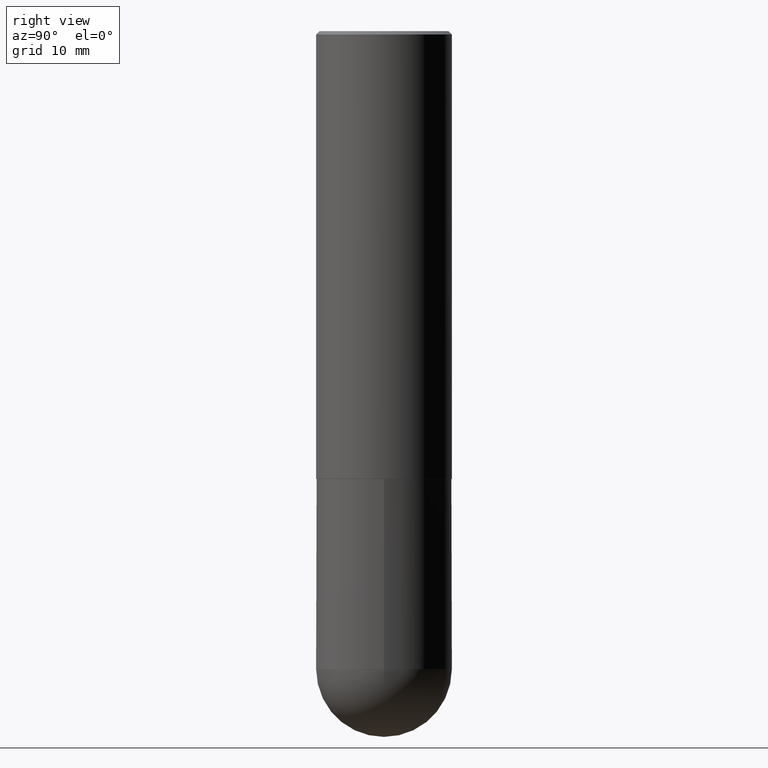
[diagram: clean part render]
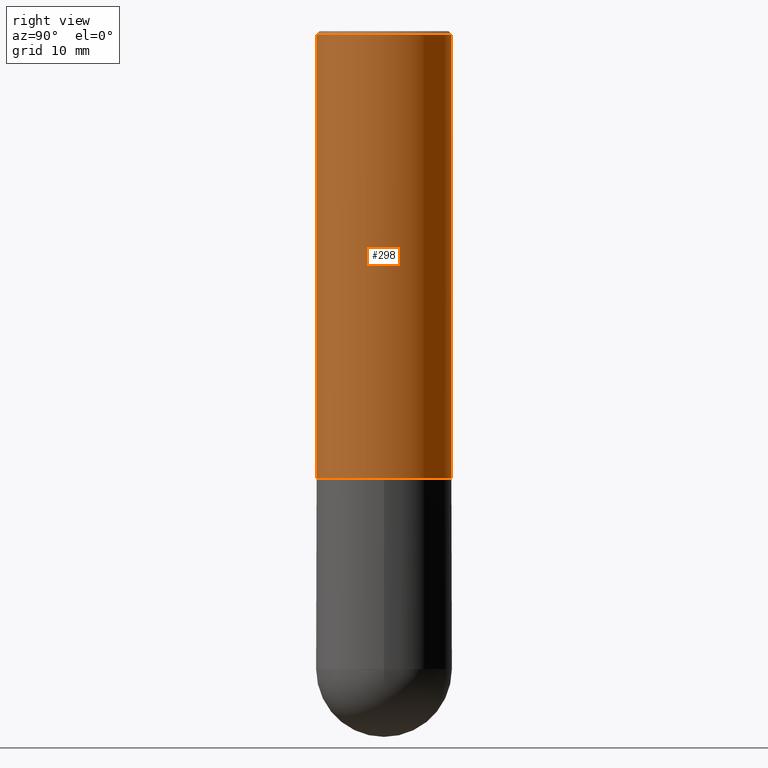
[diagram: same view with one face highlighted and labeled with its STEP entity id]
A machine part, right view. The second image highlights one B-rep face of the part: STEP entity #298.
In plain terms, the highlighted cylindrical surface (partial cylindrical patch) has radius 10 mm, axis along (-0, 0, 1).
Its self-contained STEP definition (entity closure, byte-faithful):
#8 = CIRCLE ( 'NONE', #309, 0.3937000000000002720 ) ;
#14 = ORIENTED_EDGE ( 'NONE', *, *, #219, .F. ) ;
#18 = CARTESIAN_POINT ( 'NONE',  ( 6.349752936603663586E-29, -9.071792033989200442E-15, -2.597400000000000375 ) ) ;
#32 = CARTESIAN_POINT ( 'NONE',  ( -2.749192406205021291E-15, -0.3937000000000093758, -2.597399999999999043 ) ) ;
#39 = VERTEX_POINT ( 'NONE', #333 ) ;
#47 = ORIENTED_EDGE ( 'NONE', *, *, #88, .T. ) ;
#50 = DIRECTION ( 'NONE',  ( -2.444657325249735282E-29, 3.492643425729266472E-15, 1.000000000000000000 ) ) ;
#56 = CIRCLE ( 'NONE', #201, 0.3937000000000000499 ) ;
#61 = DIRECTION ( 'NONE',  ( -2.444657325249735563E-29, 3.492643425729266472E-15, 1.000000000000000000 ) ) ;
#67 = EDGE_CURVE ( 'NONE', #357, #356, #272, .T. ) ;
#88 = EDGE_CURVE ( 'NONE', #323, #357, #8, .T. ) ;
#96 = VECTOR ( 'NONE', #110, 39.37007874015748143 ) ;
#108 = CARTESIAN_POINT ( 'NONE',  ( -2.749192406205084005E-15, -0.3937000000000001609, 1.375053716709612699E-15 ) ) ;
#110 = DIRECTION ( 'NONE',  ( -2.444657325249735282E-29, 3.492643425729266472E-15, 1.000000000000000000 ) ) ;
#113 = CARTESIAN_POINT ( 'NONE',  ( 2.797406750687515181E-15, 0.3937000000000001609, -1.375053716709612699E-15 ) ) ;
#191 = DIRECTION ( 'NONE',  ( -6.982962677686265133E-15, -1.000000000000000000, 3.491137977679279424E-15 ) ) ;
#197 = ORIENTED_EDGE ( 'NONE', *, *, #268, .F. ) ;
#198 = EDGE_LOOP ( 'NONE', ( #47, #230, #197, #14 ) ) ;
#201 = AXIS2_PLACEMENT_3D ( 'NONE', #344, #370, #191 ) ;
#212 = AXIS2_PLACEMENT_3D ( 'NONE', #248, #61, #317 ) ;
#219 = EDGE_CURVE ( 'NONE', #323, #39, #396, .T. ) ;
#230 = ORIENTED_EDGE ( 'NONE', *, *, #67, .T. ) ;
#237 = DIRECTION ( 'NONE',  ( -6.982962677686265922E-15, -1.000000000000000000, 4.163344669033672479E-15 ) ) ;
#243 = VECTOR ( 'NONE', #50, 39.37007874015748143 ) ;
#248 = CARTESIAN_POINT ( 'NONE',  ( 0.000000000000000000, 0.000000000000000000, 0.000000000000000000 ) ) ;
#268 = EDGE_CURVE ( 'NONE', #39, #356, #56, .T. ) ;
#272 = LINE ( 'NONE', #113, #243 ) ;
#286 = FACE_OUTER_BOUND ( 'NONE', #198, .T. ) ;
#298 = ADVANCED_FACE ( 'NONE', ( #286 ), #312, .T. ) ;
#305 = DIRECTION ( 'NONE',  ( -2.444657325249735563E-29, 3.492643425729266472E-15, 1.000000000000000000 ) ) ;
#309 = AXIS2_PLACEMENT_3D ( 'NONE', #18, #305, #237 ) ;
#312 = CYLINDRICAL_SURFACE ( 'NONE', #212, 0.3937000000000001609 ) ;
#317 = DIRECTION ( 'NONE',  ( -6.982962677686265922E-15, -1.000000000000000000, 3.492643425729266472E-15 ) ) ;
#323 = VERTEX_POINT ( 'NONE', #32 ) ;
#333 = CARTESIAN_POINT ( 'NONE',  ( -2.700978061722651252E-15, -0.3937000000000001054, -0.01999999999999871672 ) ) ;
#344 = CARTESIAN_POINT ( 'NONE',  ( 4.889314650499493511E-31, -6.985286851458564351E-17, -0.02000000000000009062 ) ) ;
#347 = CARTESIAN_POINT ( 'NONE',  ( 2.797406750687547524E-15, 0.3936999999999912236, -2.597400000000002152 ) ) ;
#356 = VERTEX_POINT ( 'NONE', #380 ) ;
#357 = VERTEX_POINT ( 'NONE', #347 ) ;
#370 = DIRECTION ( 'NONE',  ( -2.444657325249735563E-29, 3.492643425729266472E-15, 1.000000000000000000 ) ) ;
#380 = CARTESIAN_POINT ( 'NONE',  ( 2.749192406205083217E-15, 0.3936999999999999389, -0.02000000000000146452 ) ) ;
#396 = LINE ( 'NONE', #108, #96 ) ;